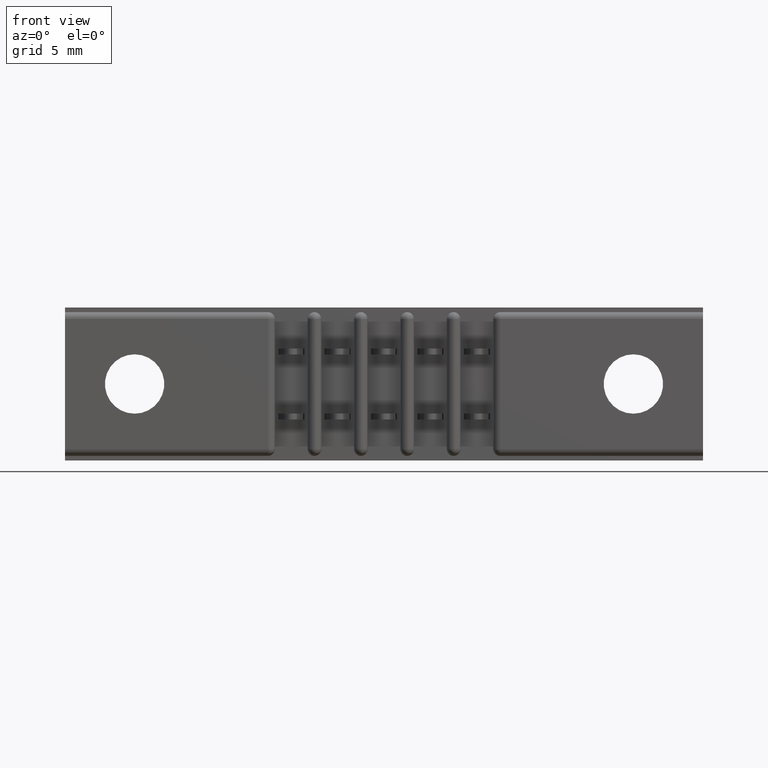
[diagram: clean part render]
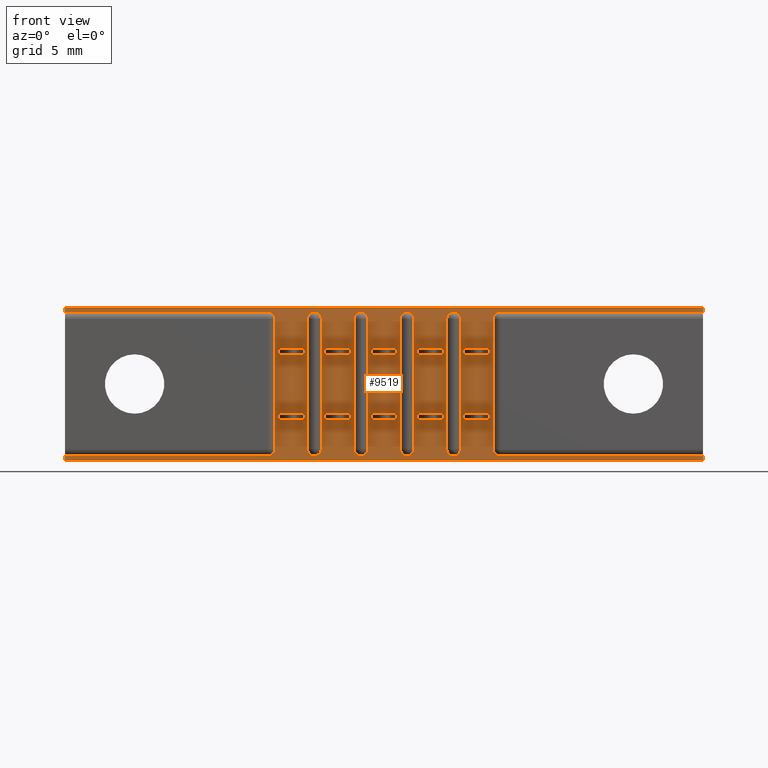
[diagram: same view with one face highlighted and labeled with its STEP entity id]
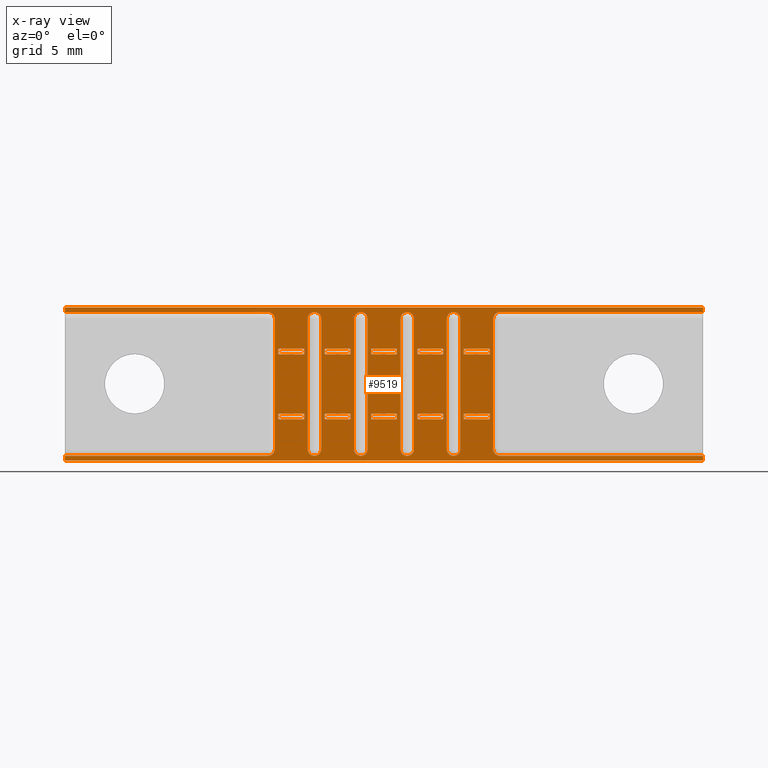
[diagram: x-ray of the same camera — body ghosted, the highlighted face saturated]
A machine part, front view. The second image highlights one B-rep face of the part: STEP entity #9519.
The next image is the same camera in x-ray: the body ghosted, the highlighted face saturated — about 0% of this face is hidden behind the body in this view.
In plain terms, the highlighted planar face has unit normal (0, 1, -0).
Its self-contained STEP definition (entity closure, byte-faithful):
#6 = CARTESIAN_POINT ( 'NONE',  ( 0.5377500000000002800, 0.03099999999999899700, -0.3049999999999999900 ) ) ;
#19 = AXIS2_PLACEMENT_3D ( 'NONE', #4842, #10398, #5757 ) ;
#89 = EDGE_CURVE ( 'NONE', #8080, #4958, #3543, .T. ) ;
#106 = AXIS2_PLACEMENT_3D ( 'NONE', #1381, #1370, #1366 ) ;
#108 = CARTESIAN_POINT ( 'NONE',  ( 0.6594999999999995300, 0.03100000000000002400, -0.2029999999999999300 ) ) ;
#109 = ORIENTED_EDGE ( 'NONE', *, *, #7402, .T. ) ;
#125 = DIRECTION ( 'NONE',  ( 0.0000000000000000000, 1.000000000000000000, -3.414809992080365400E-015 ) ) ;
#128 = CARTESIAN_POINT ( 'NONE',  ( 0.8594999999999994900, 0.03100000000000000700, -0.2414999999999998800 ) ) ;
#154 = AXIS2_PLACEMENT_3D ( 'NONE', #1957, #1948, #1909 ) ;
#170 = DIRECTION ( 'NONE',  ( 0.0000000000000000000, 0.0000000000000000000, -1.000000000000000000 ) ) ;
#179 = ORIENTED_EDGE ( 'NONE', *, *, #6045, .T. ) ;
#189 = VERTEX_POINT ( 'NONE', #382 ) ;
#190 = VERTEX_POINT ( 'NONE', #4159 ) ;
#200 = EDGE_CURVE ( 'NONE', #4737, #8665, #6596, .T. ) ;
#259 = ORIENTED_EDGE ( 'NONE', *, *, #2756, .T. ) ;
#271 = ORIENTED_EDGE ( 'NONE', *, *, #5970, .F. ) ;
#296 = EDGE_LOOP ( 'NONE', ( #6467, #259, #4489, #513, #619, #1686 ) ) ;
#300 = ORIENTED_EDGE ( 'NONE', *, *, #9432, .F. ) ;
#328 = EDGE_CURVE ( 'NONE', #836, #751, #9291, .T. ) ;
#331 = DIRECTION ( 'NONE',  ( 1.000000000000000000, -1.210925529106501700E-016, -2.109734998192877800E-032 ) ) ;
#356 = ORIENTED_EDGE ( 'NONE', *, *, #1747, .T. ) ;
#373 = VERTEX_POINT ( 'NONE', #7046 ) ;
#382 = CARTESIAN_POINT ( 'NONE',  ( 0.6154999999999994900, 0.03100000000000000000, -0.2284999999999998400 ) ) ;
#403 = VERTEX_POINT ( 'NONE', #7757 ) ;
#404 = EDGE_CURVE ( 'NONE', #4330, #751, #3260, .T. ) ;
#422 = EDGE_CURVE ( 'NONE', #7274, #5988, #5348, .T. ) ;
#447 = VERTEX_POINT ( 'NONE', #4170 ) ;
#460 = CARTESIAN_POINT ( 'NONE',  ( 0.8522500000000004000, 0.03100000000000000700, -0.02499166435056491400 ) ) ;
#463 = LINE ( 'NONE', #730, #5156 ) ;
#482 = ORIENTED_EDGE ( 'NONE', *, *, #328, .T. ) ;
#505 = CARTESIAN_POINT ( 'NONE',  ( 0.6154999999999994900, 0.03100000000000002400, -0.2029999999999999300 ) ) ;
#513 = ORIENTED_EDGE ( 'NONE', *, *, #3620, .T. ) ;
#540 = DIRECTION ( 'NONE',  ( -1.000000000000000000, -0.0000000000000000000, -0.0000000000000000000 ) ) ;
#549 = CARTESIAN_POINT ( 'NONE',  ( 0.9154999999999995400, 0.03100000000000002400, -0.2414999999999998800 ) ) ;
#563 = CARTESIAN_POINT ( 'NONE',  ( 1.375000000000000000, 0.03100000000000003800, -6.829619984160658000E-017 ) ) ;
#619 = ORIENTED_EDGE ( 'NONE', *, *, #4628, .T. ) ;
#636 = CARTESIAN_POINT ( 'NONE',  ( 1.375000000000000000, 0.03100000000000000300, -0.009999999999999962000 ) ) ;
#670 = VERTEX_POINT ( 'NONE', #6570 ) ;
#682 = CARTESIAN_POINT ( 'NONE',  ( 0.5594999999999995500, 0.03100000000000000700, -0.1014999999999998500 ) ) ;
#697 = EDGE_CURVE ( 'NONE', #447, #4330, #8580, .T. ) ;
#701 = VECTOR ( 'NONE', #9563, 39.37007874015748100 ) ;
#730 = CARTESIAN_POINT ( 'NONE',  ( 0.7594999999999994000, 0.03100000000000002400, -0.2029999999999999300 ) ) ;
#737 = ORIENTED_EDGE ( 'NONE', *, *, #2792, .T. ) ;
#751 = VERTEX_POINT ( 'NONE', #7551 ) ;
#761 = VERTEX_POINT ( 'NONE', #10234 ) ;
#809 = DIRECTION ( 'NONE',  ( -1.000000000000000000, 1.210925529106501700E-016, 2.109734998192877800E-032 ) ) ;
#814 = DIRECTION ( 'NONE',  ( -1.000000000000000000, -0.0000000000000000000, -0.0000000000000000000 ) ) ;
#820 = LINE ( 'NONE', #3554, #5999 ) ;
#836 = VERTEX_POINT ( 'NONE', #7213 ) ;
#864 = CARTESIAN_POINT ( 'NONE',  ( 0.7154999999999994700, 0.03100000000000002400, -0.2029999999999999300 ) ) ;
#895 = CARTESIAN_POINT ( 'NONE',  ( 0.8594999999999994900, 0.03100000000000000700, -0.2284999999999998400 ) ) ;
#932 = VERTEX_POINT ( 'NONE', #2240 ) ;
#960 = CARTESIAN_POINT ( 'NONE',  ( 0.7594999999999994000, 0.03100000000000002400, -0.2414999999999998800 ) ) ;
#966 = LINE ( 'NONE', #9379, #3192 ) ;
#1006 = ORIENTED_EDGE ( 'NONE', *, *, #10284, .T. ) ;
#1043 = DIRECTION ( 'NONE',  ( 0.0000000000000000000, 3.414809992080326400E-015, 1.000000000000000000 ) ) ;
#1057 = VECTOR ( 'NONE', #6014, 39.37007874015748100 ) ;
#1059 = DIRECTION ( 'NONE',  ( 0.0000000000000000000, 1.000000000000000000, -3.414809992080365400E-015 ) ) ;
#1068 = CIRCLE ( 'NONE', #106, 0.01499999999999999900 ) ;
#1069 = VECTOR ( 'NONE', #10860, 39.37007874015748100 ) ;
#1085 = LINE ( 'NONE', #8064, #2731 ) ;
#1100 = CARTESIAN_POINT ( 'NONE',  ( 0.5372500000000004500, 0.03099999999999899700, -0.3050083356494350300 ) ) ;
#1106 = ORIENTED_EDGE ( 'NONE', *, *, #5590, .T. ) ;
#1166 = VECTOR ( 'NONE', #5529, 39.37007874015748100 ) ;
#1171 = EDGE_CURVE ( 'NONE', #8665, #2169, #3824, .T. ) ;
#1197 = CIRCLE ( 'NONE', #4957, 0.01499999999999999900 ) ;
#1215 = CARTESIAN_POINT ( 'NONE',  ( 0.9154999999999994300, 0.03100000000000002400, -0.2029999999999999300 ) ) ;
#1290 = LINE ( 'NONE', #5014, #8604 ) ;
#1310 = CARTESIAN_POINT ( 'NONE',  ( 0.7522500000000004200, 0.03100000000000000700, 0.0000000000000000000 ) ) ;
#1322 = VERTEX_POINT ( 'NONE', #8336 ) ;
#1352 = FACE_BOUND ( 'NONE', #2620, .T. ) ;
#1366 = DIRECTION ( 'NONE',  ( 0.0000000000000000000, 3.414809992080329100E-015, 1.000000000000000000 ) ) ;
#1370 = DIRECTION ( 'NONE',  ( 0.0000000000000000000, 1.000000000000000000, -3.414809992080365400E-015 ) ) ;
#1375 = CIRCLE ( 'NONE', #6993, 0.01499999999999999900 ) ;
#1381 = CARTESIAN_POINT ( 'NONE',  ( 0.7372500000000004100, 0.03099999999999995100, -0.02499166435056491400 ) ) ;
#1394 = LINE ( 'NONE', #9934, #1057 ) ;
#1410 = EDGE_CURVE ( 'NONE', #2784, #3246, #8213, .T. ) ;
#1495 = DIRECTION ( 'NONE',  ( 0.0000000000000000000, 1.000000000000000000, -3.414809992080365400E-015 ) ) ;
#1550 = AXIS2_PLACEMENT_3D ( 'NONE', #9088, #9074, #9073 ) ;
#1576 = EDGE_CURVE ( 'NONE', #6659, #9992, #1375, .T. ) ;
#1593 = VECTOR ( 'NONE', #3092, 39.37007874015748100 ) ;
#1648 = ORIENTED_EDGE ( 'NONE', *, *, #4552, .F. ) ;
#1661 = ORIENTED_EDGE ( 'NONE', *, *, #89, .F. ) ;
#1665 = FACE_BOUND ( 'NONE', #5671, .T. ) ;
#1669 = EDGE_CURVE ( 'NONE', #9530, #8569, #4778, .T. ) ;
#1686 = ORIENTED_EDGE ( 'NONE', *, *, #4975, .F. ) ;
#1700 = VERTEX_POINT ( 'NONE', #1980 ) ;
#1701 = CARTESIAN_POINT ( 'NONE',  ( 0.7594999999999995100, 0.03100000000000000700, -0.08849999999999985700 ) ) ;
#1725 = VECTOR ( 'NONE', #5168, 39.37007874015748100 ) ;
#1732 = CARTESIAN_POINT ( 'NONE',  ( 0.6522500000000005500, 0.03100000000000000700, -0.02499166435056491400 ) ) ;
#1747 = EDGE_CURVE ( 'NONE', #3246, #190, #3941, .T. ) ;
#1770 = VERTEX_POINT ( 'NONE', #8448 ) ;
#1800 = DIRECTION ( 'NONE',  ( 0.0000000000000000000, 0.0000000000000000000, -1.000000000000000000 ) ) ;
#1804 = VECTOR ( 'NONE', #8554, 39.37007874015748100 ) ;
#1842 = ORIENTED_EDGE ( 'NONE', *, *, #6598, .T. ) ;
#1857 = DIRECTION ( 'NONE',  ( 0.0000000000000000000, 1.000000000000000000, -3.414809992080365400E-015 ) ) ;
#1889 = DIRECTION ( 'NONE',  ( 1.000000000000000000, -1.210925529106501700E-016, -2.109734998192877800E-032 ) ) ;
#1893 = LINE ( 'NONE', #6494, #10206 ) ;
#1896 = CARTESIAN_POINT ( 'NONE',  ( 1.375000000000000000, 0.03100000000000000300, -0.009999999999999962000 ) ) ;
#1909 = DIRECTION ( 'NONE',  ( 0.0000000000000000000, 3.414809992080329100E-015, 1.000000000000000000 ) ) ;
#1916 = DIRECTION ( 'NONE',  ( -0.0000000000000000000, -0.0000000000000000000, -1.000000000000000000 ) ) ;
#1948 = DIRECTION ( 'NONE',  ( 0.0000000000000000000, 1.000000000000000000, -3.414809992080365400E-015 ) ) ;
#1957 = CARTESIAN_POINT ( 'NONE',  ( 0.7377500000000003500, 0.03099999999999995100, -0.02499999999999996300 ) ) ;
#1976 = CARTESIAN_POINT ( 'NONE',  ( 0.4594999999999995200, 0.03100000000000000700, -0.1014999999999998500 ) ) ;
#1980 = CARTESIAN_POINT ( 'NONE',  ( 0.5522500000000004600, 0.03100000000000000700, -0.02499166435056492100 ) ) ;
#1981 = FACE_OUTER_BOUND ( 'NONE', #7919, .T. ) ;
#2010 = ORIENTED_EDGE ( 'NONE', *, *, #6844, .F. ) ;
#2019 = CARTESIAN_POINT ( 'NONE',  ( 0.8154999999999995600, 0.03100000000000000000, -0.08849999999999985700 ) ) ;
#2037 = VECTOR ( 'NONE', #814, 39.37007874015748100 ) ;
#2044 = CIRCLE ( 'NONE', #3125, 0.01500000000000001200 ) ;
#2047 = VERTEX_POINT ( 'NONE', #960 ) ;
#2051 = ORIENTED_EDGE ( 'NONE', *, *, #3031, .F. ) ;
#2054 = DIRECTION ( 'NONE',  ( -1.000000000000000000, 1.210925529106501700E-016, 2.109734998192877800E-032 ) ) ;
#2059 = DIRECTION ( 'NONE',  ( 0.0000000000000000000, 3.414809992080329100E-015, 1.000000000000000000 ) ) ;
#2075 = LINE ( 'NONE', #10458, #10563 ) ;
#2078 = VECTOR ( 'NONE', #2054, 39.37007874015748100 ) ;
#2088 = EDGE_CURVE ( 'NONE', #2784, #6174, #10360, .T. ) ;
#2098 = CARTESIAN_POINT ( 'NONE',  ( 0.4372500000000003600, 0.03099999999999996500, -0.3200000000000000100 ) ) ;
#2109 = CARTESIAN_POINT ( 'NONE',  ( 0.5594999999999995500, 0.03100000000000000700, -0.2284999999999998400 ) ) ;
#2169 = VERTEX_POINT ( 'NONE', #2098 ) ;
#2187 = ORIENTED_EDGE ( 'NONE', *, *, #9433, .T. ) ;
#2209 = VERTEX_POINT ( 'NONE', #5120 ) ;
#2212 = LINE ( 'NONE', #5753, #8774 ) ;
#2238 = CIRCLE ( 'NONE', #6164, 0.01499999999999999900 ) ;
#2240 = CARTESIAN_POINT ( 'NONE',  ( 0.5522500000000004600, 0.03100000000000000700, -0.3050083356494350300 ) ) ;
#2243 = FACE_BOUND ( 'NONE', #296, .T. ) ;
#2278 = VECTOR ( 'NONE', #3212, 39.37007874015748100 ) ;
#2290 = EDGE_CURVE ( 'NONE', #4661, #4141, #2238, .T. ) ;
#2296 = CARTESIAN_POINT ( 'NONE',  ( 0.6154999999999994900, 0.03100000000000000000, -0.1014999999999998500 ) ) ;
#2312 = EDGE_CURVE ( 'NONE', #3797, #8080, #8312, .T. ) ;
#2314 = VECTOR ( 'NONE', #3433, 39.37007874015748100 ) ;
#2328 = VERTEX_POINT ( 'NONE', #9231 ) ;
#2367 = EDGE_CURVE ( 'NONE', #9992, #1700, #9828, .T. ) ;
#2385 = ORIENTED_EDGE ( 'NONE', *, *, #3280, .F. ) ;
#2410 = DIRECTION ( 'NONE',  ( 0.0000000000000000000, 0.0000000000000000000, -1.000000000000000000 ) ) ;
#2422 = CARTESIAN_POINT ( 'NONE',  ( 0.5154999999999995100, 0.03100000000000002400, -0.2029999999999999300 ) ) ;
#2423 = DIRECTION ( 'NONE',  ( 0.0000000000000000000, 3.414809992080326400E-015, 1.000000000000000000 ) ) ;
#2433 = DIRECTION ( 'NONE',  ( 0.0000000000000000000, 1.000000000000000000, -3.414809992080365400E-015 ) ) ;
#2489 = CARTESIAN_POINT ( 'NONE',  ( 1.375000000000000000, 0.03100000000000003800, -6.829619984160658000E-017 ) ) ;
#2494 = DIRECTION ( 'NONE',  ( -1.000000000000000000, 1.210925529106501700E-016, 2.109734998192877800E-032 ) ) ;
#2499 = ORIENTED_EDGE ( 'NONE', *, *, #2312, .F. ) ;
#2502 = CARTESIAN_POINT ( 'NONE',  ( 0.8154999999999994500, 0.03100000000000002400, -0.2029999999999999300 ) ) ;
#2514 = ORIENTED_EDGE ( 'NONE', *, *, #5619, .T. ) ;
#2529 = CARTESIAN_POINT ( 'NONE',  ( 0.6594999999999995300, 0.03100000000000000700, -0.2284999999999998400 ) ) ;
#2534 = EDGE_CURVE ( 'NONE', #5328, #6267, #7963, .T. ) ;
#2543 = CARTESIAN_POINT ( 'NONE',  ( 0.7594999999999995100, 0.03100000000000000700, -0.1014999999999998500 ) ) ;
#2564 = VECTOR ( 'NONE', #9938, 39.37007874015748100 ) ;
#2573 = VECTOR ( 'NONE', #2494, 39.37007874015748100 ) ;
#2599 = CARTESIAN_POINT ( 'NONE',  ( 0.4522500000000004800, 0.03100000000000000700, -0.02499999999999996300 ) ) ;
#2602 = VECTOR ( 'NONE', #8681, 39.37007874015748100 ) ;
#2607 = ORIENTED_EDGE ( 'NONE', *, *, #10777, .F. ) ;
#2616 = CIRCLE ( 'NONE', #2963, 0.01500000000000001200 ) ;
#2619 = VERTEX_POINT ( 'NONE', #8631 ) ;
#2620 = EDGE_LOOP ( 'NONE', ( #4657, #10647, #9785, #4771 ) ) ;
#2623 = ORIENTED_EDGE ( 'NONE', *, *, #9846, .T. ) ;
#2627 = ORIENTED_EDGE ( 'NONE', *, *, #2534, .T. ) ;
#2637 = VECTOR ( 'NONE', #4031, 39.37007874015748100 ) ;
#2648 = LINE ( 'NONE', #6280, #6820 ) ;
#2658 = CARTESIAN_POINT ( 'NONE',  ( 0.8372500000000004900, 0.03099999999999899700, -0.3050083356494350300 ) ) ;
#2661 = ORIENTED_EDGE ( 'NONE', *, *, #5169, .F. ) ;
#2666 = LINE ( 'NONE', #5276, #6840 ) ;
#2731 = VECTOR ( 'NONE', #7993, 39.37007874015748100 ) ;
#2733 = VERTEX_POINT ( 'NONE', #2019 ) ;
#2741 = ORIENTED_EDGE ( 'NONE', *, *, #2853, .F. ) ;
#2756 = EDGE_CURVE ( 'NONE', #4141, #5624, #2935, .T. ) ;
#2764 = CARTESIAN_POINT ( 'NONE',  ( 0.5154999999999995100, 0.03100000000000000000, -0.08849999999999985700 ) ) ;
#2784 = VERTEX_POINT ( 'NONE', #6999 ) ;
#2785 = ORIENTED_EDGE ( 'NONE', *, *, #1410, .T. ) ;
#2792 = EDGE_CURVE ( 'NONE', #6126, #5449, #2648, .T. ) ;
#2805 = DIRECTION ( 'NONE',  ( -0.0000000000000000000, -0.0000000000000000000, -1.000000000000000000 ) ) ;
#2833 = EDGE_LOOP ( 'NONE', ( #4236, #4434, #4747, #5396 ) ) ;
#2848 = ORIENTED_EDGE ( 'NONE', *, *, #7536, .T. ) ;
#2853 = EDGE_CURVE ( 'NONE', #6174, #5449, #8644, .T. ) ;
#2863 = CARTESIAN_POINT ( 'NONE',  ( 0.7154999999999994700, 0.03100000000000000000, -0.08849999999999985700 ) ) ;
#2881 = DIRECTION ( 'NONE',  ( 0.0000000000000000000, 1.000000000000000000, -3.414809992080365400E-015 ) ) ;
#2882 = CARTESIAN_POINT ( 'NONE',  ( 0.9154999999999995400, 0.03100000000000000000, -0.08849999999999985700 ) ) ;
#2901 = EDGE_CURVE ( 'NONE', #1700, #932, #6275, .T. ) ;
#2904 = EDGE_CURVE ( 'NONE', #5283, #10544, #8177, .T. ) ;
#2910 = CARTESIAN_POINT ( 'NONE',  ( 0.7377500000000003500, 0.03099999999999996500, -0.3200000000000000100 ) ) ;
#2929 = CARTESIAN_POINT ( 'NONE',  ( 0.8154999999999995600, 0.03100000000000000000, -0.2284999999999998400 ) ) ;
#2931 = CIRCLE ( 'NONE', #8274, 0.01499999999999999900 ) ;
#2935 = CIRCLE ( 'NONE', #5411, 0.01499999999999999900 ) ;
#2942 = CARTESIAN_POINT ( 'NONE',  ( 0.6522500000000005500, 0.03100000000000000700, 0.0000000000000000000 ) ) ;
#2963 = AXIS2_PLACEMENT_3D ( 'NONE', #10121, #1857, #3606 ) ;
#2966 = CARTESIAN_POINT ( 'NONE',  ( 0.8594999999999993800, 0.03100000000000002400, -0.2414999999999998800 ) ) ;
#3025 = CARTESIAN_POINT ( 'NONE',  ( 0.6594999999999995300, 0.03100000000000000700, -0.1014999999999998500 ) ) ;
#3031 = EDGE_CURVE ( 'NONE', #2047, #3429, #2212, .T. ) ;
#3092 = DIRECTION ( 'NONE',  ( 0.0000000000000000000, 0.0000000000000000000, 1.000000000000000000 ) ) ;
#3109 = VECTOR ( 'NONE', #540, 39.37007874015748100 ) ;
#3125 = AXIS2_PLACEMENT_3D ( 'NONE', #6, #1495, #3817 ) ;
#3136 = CARTESIAN_POINT ( 'NONE',  ( 0.4372500000000003600, 0.03100000000000000300, -0.009999999999999962000 ) ) ;
#3137 = VERTEX_POINT ( 'NONE', #6197 ) ;
#3143 = DIRECTION ( 'NONE',  ( -0.0000000000000000000, -0.0000000000000000000, -1.000000000000000000 ) ) ;
#3163 = CARTESIAN_POINT ( 'NONE',  ( 0.0000000000000000000, 0.03099999999999996200, -0.3299999999999999000 ) ) ;
#3171 = ORIENTED_EDGE ( 'NONE', *, *, #10471, .F. ) ;
#3183 = EDGE_LOOP ( 'NONE', ( #7284, #8346, #109, #10694 ) ) ;
#3192 = VECTOR ( 'NONE', #8645, 39.37007874015748100 ) ;
#3200 = EDGE_CURVE ( 'NONE', #5624, #6573, #5279, .T. ) ;
#3203 = ORIENTED_EDGE ( 'NONE', *, *, #7452, .T. ) ;
#3205 = CARTESIAN_POINT ( 'NONE',  ( 0.6377500000000003700, 0.03099999999999996500, -0.3200000000000000100 ) ) ;
#3206 = LINE ( 'NONE', #10393, #7077 ) ;
#3212 = DIRECTION ( 'NONE',  ( -0.0000000000000000000, -0.0000000000000000000, -1.000000000000000000 ) ) ;
#3246 = VERTEX_POINT ( 'NONE', #8860 ) ;
#3251 = EDGE_CURVE ( 'NONE', #932, #6718, #10774, .T. ) ;
#3255 = EDGE_CURVE ( 'NONE', #2733, #6543, #6811, .T. ) ;
#3260 = LINE ( 'NONE', #4546, #701 ) ;
#3280 = EDGE_CURVE ( 'NONE', #10233, #5988, #8638, .T. ) ;
#3304 = ORIENTED_EDGE ( 'NONE', *, *, #5653, .F. ) ;
#3317 = CARTESIAN_POINT ( 'NONE',  ( 0.5594999999999995500, 0.03100000000000000700, -0.08849999999999985700 ) ) ;
#3322 = CARTESIAN_POINT ( 'NONE',  ( 0.8154999999999995600, 0.03100000000000000000, -0.1014999999999998500 ) ) ;
#3368 = CARTESIAN_POINT ( 'NONE',  ( 0.5594999999999994400, 0.03100000000000000700, -0.1269999999999997000 ) ) ;
#3373 = PLANE ( 'NONE',  #10296 ) ;
#3429 = VERTEX_POINT ( 'NONE', #9375 ) ;
#3433 = DIRECTION ( 'NONE',  ( 0.0000000000000000000, 0.0000000000000000000, -1.000000000000000000 ) ) ;
#3443 = DIRECTION ( 'NONE',  ( 0.0000000000000000000, 1.000000000000000000, -3.414809992080365400E-015 ) ) ;
#3452 = ORIENTED_EDGE ( 'NONE', *, *, #7852, .T. ) ;
#3490 = DIRECTION ( 'NONE',  ( 1.000000000000000000, -1.210925529106501700E-016, -2.109734998192877800E-032 ) ) ;
#3518 = CARTESIAN_POINT ( 'NONE',  ( 0.5377500000000002800, 0.03099999999999995100, -0.02499999999999996300 ) ) ;
#3528 = CIRCLE ( 'NONE', #5642, 0.01499999999999999900 ) ;
#3543 = LINE ( 'NONE', #1896, #1069 ) ;
#3554 = CARTESIAN_POINT ( 'NONE',  ( 0.7227500000000003400, 0.03100000000000000000, 0.0000000000000000000 ) ) ;
#3595 = VERTEX_POINT ( 'NONE', #3710 ) ;
#3606 = DIRECTION ( 'NONE',  ( 0.0000000000000000000, 3.414809992080326400E-015, 1.000000000000000000 ) ) ;
#3620 = EDGE_CURVE ( 'NONE', #6573, #4839, #6522, .T. ) ;
#3621 = DIRECTION ( 'NONE',  ( -0.0000000000000000000, -4.268512490100456800E-016, -1.000000000000000000 ) ) ;
#3623 = CARTESIAN_POINT ( 'NONE',  ( 0.6227500000000003600, 0.03100000000000000000, 0.0000000000000000000 ) ) ;
#3649 = LINE ( 'NONE', #9780, #9954 ) ;
#3710 = CARTESIAN_POINT ( 'NONE',  ( 0.7154999999999994700, 0.03100000000000002400, -0.2414999999999998800 ) ) ;
#3794 = CARTESIAN_POINT ( 'NONE',  ( 1.375000000000000000, 0.03099999999999996200, -0.3299999999999999000 ) ) ;
#3797 = VERTEX_POINT ( 'NONE', #6387 ) ;
#3798 = FACE_BOUND ( 'NONE', #3994, .T. ) ;
#3817 = DIRECTION ( 'NONE',  ( 0.0000000000000000000, 3.414809992080326400E-015, 1.000000000000000000 ) ) ;
#3824 = CIRCLE ( 'NONE', #7653, 0.01500000000000001200 ) ;
#3837 = VECTOR ( 'NONE', #7428, 39.37007874015748100 ) ;
#3846 = EDGE_LOOP ( 'NONE', ( #271, #6568, #1842, #2010 ) ) ;
#3868 = ORIENTED_EDGE ( 'NONE', *, *, #8800, .T. ) ;
#3913 = VERTEX_POINT ( 'NONE', #2296 ) ;
#3941 = CIRCLE ( 'NONE', #6681, 0.01500000000000001200 ) ;
#3994 = EDGE_LOOP ( 'NONE', ( #2661, #9314, #10581, #300 ) ) ;
#4031 = DIRECTION ( 'NONE',  ( 1.000000000000000000, -1.210925529106501700E-016, -2.109734998192877800E-032 ) ) ;
#4034 = ORIENTED_EDGE ( 'NONE', *, *, #10328, .F. ) ;
#4049 = VECTOR ( 'NONE', #10225, 39.37007874015748100 ) ;
#4050 = DIRECTION ( 'NONE',  ( 1.000000000000000000, -1.210925529106501700E-016, -2.109734998192877800E-032 ) ) ;
#4072 = FACE_BOUND ( 'NONE', #6842, .T. ) ;
#4091 = AXIS2_PLACEMENT_3D ( 'NONE', #2658, #2433, #2423 ) ;
#4111 = CARTESIAN_POINT ( 'NONE',  ( 0.7522500000000004200, 0.03100000000000000700, -0.3050083356494350300 ) ) ;
#4138 = VECTOR ( 'NONE', #331, 39.37007874015748100 ) ;
#4141 = VERTEX_POINT ( 'NONE', #6819 ) ;
#4159 = CARTESIAN_POINT ( 'NONE',  ( 0.9227500000000004000, 0.03100000000000000000, -0.3049999999999999900 ) ) ;
#4170 = CARTESIAN_POINT ( 'NONE',  ( 0.7154999999999994700, 0.03100000000000000000, -0.1014999999999998500 ) ) ;
#4175 = EDGE_LOOP ( 'NONE', ( #4732, #3171, #6064, #2051 ) ) ;
#4187 = CARTESIAN_POINT ( 'NONE',  ( 0.9377500000000004200, 0.03099999999999899700, -0.3049999999999999900 ) ) ;
#4214 = ORIENTED_EDGE ( 'NONE', *, *, #5964, .F. ) ;
#4236 = ORIENTED_EDGE ( 'NONE', *, *, #5677, .F. ) ;
#4279 = DIRECTION ( 'NONE',  ( 0.0000000000000000000, 1.000000000000000000, -3.414809992080365400E-015 ) ) ;
#4288 = DIRECTION ( 'NONE',  ( 0.0000000000000000000, 1.000000000000000000, -3.414809992080365400E-015 ) ) ;
#4312 = ORIENTED_EDGE ( 'NONE', *, *, #5059, .F. ) ;
#4316 = DIRECTION ( 'NONE',  ( 0.0000000000000000000, 3.414809992080326400E-015, 1.000000000000000000 ) ) ;
#4330 = VERTEX_POINT ( 'NONE', #2863 ) ;
#4349 = FACE_BOUND ( 'NONE', #8865, .T. ) ;
#4391 = CARTESIAN_POINT ( 'NONE',  ( 0.8227500000000004300, 0.03100000000000000000, -0.02499999999999996300 ) ) ;
#4406 = ORIENTED_EDGE ( 'NONE', *, *, #2088, .F. ) ;
#4416 = LINE ( 'NONE', #5393, #4696 ) ;
#4434 = ORIENTED_EDGE ( 'NONE', *, *, #7394, .F. ) ;
#4465 = EDGE_CURVE ( 'NONE', #6718, #5079, #2044, .T. ) ;
#4489 = ORIENTED_EDGE ( 'NONE', *, *, #3200, .T. ) ;
#4546 = CARTESIAN_POINT ( 'NONE',  ( 0.6594999999999995300, 0.03100000000000000700, -0.08849999999999985700 ) ) ;
#4552 = EDGE_CURVE ( 'NONE', #6659, #5079, #1290, .T. ) ;
#4578 = CARTESIAN_POINT ( 'NONE',  ( 0.0000000000000000000, 0.03100000000000003800, -6.829619984160658000E-017 ) ) ;
#4584 = CARTESIAN_POINT ( 'NONE',  ( 0.5154999999999995100, 0.03100000000000000000, -0.1014999999999998500 ) ) ;
#4617 = AXIS2_PLACEMENT_3D ( 'NONE', #10276, #5583, #10948 ) ;
#4628 = EDGE_CURVE ( 'NONE', #4839, #6359, #2616, .T. ) ;
#4649 = AXIS2_PLACEMENT_3D ( 'NONE', #1100, #1059, #1043 ) ;
#4651 = ORIENTED_EDGE ( 'NONE', *, *, #2904, .F. ) ;
#4657 = ORIENTED_EDGE ( 'NONE', *, *, #9617, .F. ) ;
#4661 = VERTEX_POINT ( 'NONE', #4391 ) ;
#4675 = ORIENTED_EDGE ( 'NONE', *, *, #10076, .F. ) ;
#4684 = VECTOR ( 'NONE', #2410, 39.37007874015748100 ) ;
#4696 = VECTOR ( 'NONE', #5273, 39.37007874015748100 ) ;
#4703 = CARTESIAN_POINT ( 'NONE',  ( 0.6227500000000003600, 0.03100000000000000000, -0.02499999999999996300 ) ) ;
#4704 = LINE ( 'NONE', #1215, #2314 ) ;
#4732 = ORIENTED_EDGE ( 'NONE', *, *, #10085, .F. ) ;
#4737 = VERTEX_POINT ( 'NONE', #2599 ) ;
#4747 = ORIENTED_EDGE ( 'NONE', *, *, #9125, .T. ) ;
#4771 = ORIENTED_EDGE ( 'NONE', *, *, #1669, .F. ) ;
#4778 = LINE ( 'NONE', #3317, #8925 ) ;
#4800 = CARTESIAN_POINT ( 'NONE',  ( 0.9377500000000004200, 0.03099999999999995100, -0.02499999999999996300 ) ) ;
#4809 = VECTOR ( 'NONE', #7871, 39.37007874015748100 ) ;
#4839 = VERTEX_POINT ( 'NONE', #9776 ) ;
#4840 = VERTEX_POINT ( 'NONE', #895 ) ;
#4842 = CARTESIAN_POINT ( 'NONE',  ( 0.6377500000000003700, 0.03099999999999995100, -0.02499999999999996300 ) ) ;
#4865 = VECTOR ( 'NONE', #7734, 39.37007874015748100 ) ;
#4950 = LINE ( 'NONE', #9300, #7002 ) ;
#4957 = AXIS2_PLACEMENT_3D ( 'NONE', #4978, #10507, #5887 ) ;
#4958 = VERTEX_POINT ( 'NONE', #10553 ) ;
#4975 = EDGE_CURVE ( 'NONE', #4661, #6359, #10424, .T. ) ;
#4978 = CARTESIAN_POINT ( 'NONE',  ( 0.6372500000000004300, 0.03099999999999995100, -0.02499166435056491400 ) ) ;
#4993 = ORIENTED_EDGE ( 'NONE', *, *, #2901, .T. ) ;
#5010 = VECTOR ( 'NONE', #809, 39.37007874015748100 ) ;
#5014 = CARTESIAN_POINT ( 'NONE',  ( 0.5227500000000003800, 0.03100000000000000000, 0.0000000000000000000 ) ) ;
#5028 = DIRECTION ( 'NONE',  ( 0.0000000000000000000, 1.000000000000000000, -3.414809992080365400E-015 ) ) ;
#5031 = CARTESIAN_POINT ( 'NONE',  ( 0.7594999999999995100, 0.03100000000000000700, -0.2284999999999998400 ) ) ;
#5059 = EDGE_CURVE ( 'NONE', #4840, #7314, #8034, .T. ) ;
#5079 = VERTEX_POINT ( 'NONE', #9284 ) ;
#5083 = LINE ( 'NONE', #7891, #4809 ) ;
#5119 = CARTESIAN_POINT ( 'NONE',  ( 0.8522500000000004000, 0.03100000000000000700, 0.0000000000000000000 ) ) ;
#5120 = CARTESIAN_POINT ( 'NONE',  ( 0.4594999999999995200, 0.03100000000000002400, -0.2414999999999998800 ) ) ;
#5124 = EDGE_CURVE ( 'NONE', #8254, #4840, #7299, .T. ) ;
#5141 = CARTESIAN_POINT ( 'NONE',  ( 0.8594999999999994900, 0.03100000000000000700, -0.08849999999999985700 ) ) ;
#5156 = VECTOR ( 'NONE', #1800, 39.37007874015748100 ) ;
#5168 = DIRECTION ( 'NONE',  ( -1.000000000000000000, 1.210925529106501700E-016, 2.109734998192877800E-032 ) ) ;
#5169 = EDGE_CURVE ( 'NONE', #5513, #1770, #8864, .T. ) ;
#5273 = DIRECTION ( 'NONE',  ( 0.0000000000000000000, 0.0000000000000000000, 1.000000000000000000 ) ) ;
#5276 = CARTESIAN_POINT ( 'NONE',  ( 0.6154999999999994900, 0.03100000000000000000, -0.1269999999999997000 ) ) ;
#5279 = LINE ( 'NONE', #5119, #9352 ) ;
#5281 = CARTESIAN_POINT ( 'NONE',  ( 0.4372500000000004200, 0.03099999999999899700, -0.3049999999999999900 ) ) ;
#5283 = VERTEX_POINT ( 'NONE', #5778 ) ;
#5308 = ORIENTED_EDGE ( 'NONE', *, *, #3255, .F. ) ;
#5328 = VERTEX_POINT ( 'NONE', #4578 ) ;
#5348 = CIRCLE ( 'NONE', #8729, 0.01500000000000001200 ) ;
#5393 = CARTESIAN_POINT ( 'NONE',  ( 0.8154999999999994500, 0.03100000000000000000, -0.1269999999999997000 ) ) ;
#5396 = ORIENTED_EDGE ( 'NONE', *, *, #10989, .F. ) ;
#5399 = AXIS2_PLACEMENT_3D ( 'NONE', #9246, #4288, #9980 ) ;
#5411 = AXIS2_PLACEMENT_3D ( 'NONE', #6561, #9027, #10273 ) ;
#5433 = EDGE_CURVE ( 'NONE', #2328, #8569, #6358, .T. ) ;
#5444 = EDGE_CURVE ( 'NONE', #836, #447, #8258, .T. ) ;
#5445 = VECTOR ( 'NONE', #9024, 39.37007874015748100 ) ;
#5449 = VERTEX_POINT ( 'NONE', #3163 ) ;
#5459 = ORIENTED_EDGE ( 'NONE', *, *, #422, .T. ) ;
#5472 = CARTESIAN_POINT ( 'NONE',  ( 0.7377500000000003500, 0.03100000000000000300, -0.009999999999999962000 ) ) ;
#5477 = EDGE_CURVE ( 'NONE', #10792, #10331, #6077, .T. ) ;
#5513 = VERTEX_POINT ( 'NONE', #2109 ) ;
#5518 = CARTESIAN_POINT ( 'NONE',  ( 0.5372500000000004500, 0.03099999999999995100, -0.02499166435056492100 ) ) ;
#5529 = DIRECTION ( 'NONE',  ( 1.000000000000000000, -1.210925529106501700E-016, -2.109734998192877800E-032 ) ) ;
#5554 = ORIENTED_EDGE ( 'NONE', *, *, #8521, .T. ) ;
#5583 = DIRECTION ( 'NONE',  ( 0.0000000000000000000, 1.000000000000000000, -3.414809992080365400E-015 ) ) ;
#5589 = DIRECTION ( 'NONE',  ( -0.0000000000000000000, -0.0000000000000000000, -1.000000000000000000 ) ) ;
#5590 = EDGE_CURVE ( 'NONE', #8254, #7660, #4704, .T. ) ;
#5619 = EDGE_CURVE ( 'NONE', #3797, #5328, #6767, .T. ) ;
#5624 = VERTEX_POINT ( 'NONE', #460 ) ;
#5642 = AXIS2_PLACEMENT_3D ( 'NONE', #5784, #125, #6656 ) ;
#5653 = EDGE_CURVE ( 'NONE', #7314, #7660, #8595, .T. ) ;
#5659 = VECTOR ( 'NONE', #8321, 39.37007874015748100 ) ;
#5671 = EDGE_LOOP ( 'NONE', ( #2623, #2187, #6309, #5797, #5459, #2385 ) ) ;
#5677 = EDGE_CURVE ( 'NONE', #2619, #10523, #10526, .T. ) ;
#5698 = CARTESIAN_POINT ( 'NONE',  ( 0.4522500000000004800, 0.03100000000000000700, 0.0000000000000000000 ) ) ;
#5709 = DIRECTION ( 'NONE',  ( 0.0000000000000000000, 3.414809992080329100E-015, 1.000000000000000000 ) ) ;
#5731 = LINE ( 'NONE', #682, #9711 ) ;
#5748 = DIRECTION ( 'NONE',  ( 0.0000000000000000000, 0.0000000000000000000, 1.000000000000000000 ) ) ;
#5753 = CARTESIAN_POINT ( 'NONE',  ( 0.7594999999999995100, 0.03100000000000000700, -0.2414999999999998800 ) ) ;
#5757 = DIRECTION ( 'NONE',  ( 0.0000000000000000000, 3.414809992080329100E-015, 1.000000000000000000 ) ) ;
#5778 = CARTESIAN_POINT ( 'NONE',  ( 0.7594999999999995100, 0.03100000000000000700, -0.1014999999999998500 ) ) ;
#5784 = CARTESIAN_POINT ( 'NONE',  ( 0.4372500000000004200, 0.03099999999999995100, -0.02499999999999996300 ) ) ;
#5797 = ORIENTED_EDGE ( 'NONE', *, *, #6068, .T. ) ;
#5816 = VECTOR ( 'NONE', #2805, 39.37007874015748100 ) ;
#5821 = CARTESIAN_POINT ( 'NONE',  ( 0.5594999999999994400, 0.03100000000000000700, -0.08849999999999985700 ) ) ;
#5824 = CARTESIAN_POINT ( 'NONE',  ( 0.5377500000000002800, 0.03099999999999996500, -0.3200000000000000100 ) ) ;
#5877 = CIRCLE ( 'NONE', #19, 0.01499999999999999900 ) ;
#5887 = DIRECTION ( 'NONE',  ( 0.0000000000000000000, 3.414809992080329100E-015, 1.000000000000000000 ) ) ;
#5935 = DIRECTION ( 'NONE',  ( -1.000000000000000000, 1.210925529106501700E-016, 2.109734998192877800E-032 ) ) ;
#5956 = VERTEX_POINT ( 'NONE', #9904 ) ;
#5964 = EDGE_CURVE ( 'NONE', #7814, #6267, #6348, .T. ) ;
#5966 = ORIENTED_EDGE ( 'NONE', *, *, #2367, .T. ) ;
#5970 = EDGE_CURVE ( 'NONE', #373, #7337, #10205, .T. ) ;
#5988 = VERTEX_POINT ( 'NONE', #9561 ) ;
#5992 = VECTOR ( 'NONE', #3143, 39.37007874015748100 ) ;
#5999 = VECTOR ( 'NONE', #7076, 39.37007874015748100 ) ;
#6012 = DIRECTION ( 'NONE',  ( 0.0000000000000000000, 1.000000000000000000, -3.414809992080365400E-015 ) ) ;
#6014 = DIRECTION ( 'NONE',  ( 0.0000000000000000000, 0.0000000000000000000, -1.000000000000000000 ) ) ;
#6045 = EDGE_CURVE ( 'NONE', #2169, #6126, #4950, .T. ) ;
#6061 = AXIS2_PLACEMENT_3D ( 'NONE', #5518, #8518, #8440 ) ;
#6064 = ORIENTED_EDGE ( 'NONE', *, *, #10596, .T. ) ;
#6068 = EDGE_CURVE ( 'NONE', #10331, #7274, #10735, .T. ) ;
#6077 = LINE ( 'NONE', #2942, #5816 ) ;
#6100 = ORIENTED_EDGE ( 'NONE', *, *, #3251, .T. ) ;
#6126 = VERTEX_POINT ( 'NONE', #8945 ) ;
#6139 = CARTESIAN_POINT ( 'NONE',  ( 0.6377500000000003700, 0.03099999999999899700, -0.3049999999999999900 ) ) ;
#6145 = CARTESIAN_POINT ( 'NONE',  ( 0.5227500000000003800, 0.03100000000000000000, -0.02499999999999996300 ) ) ;
#6147 = VECTOR ( 'NONE', #8762, 39.37007874015748100 ) ;
#6157 = FACE_BOUND ( 'NONE', #7787, .T. ) ;
#6161 = CARTESIAN_POINT ( 'NONE',  ( 0.7154999999999994700, 0.03100000000000000000, -0.2284999999999998400 ) ) ;
#6164 = AXIS2_PLACEMENT_3D ( 'NONE', #8579, #8751, #8844 ) ;
#6166 = VECTOR ( 'NONE', #10186, 39.37007874015748100 ) ;
#6174 = VERTEX_POINT ( 'NONE', #8804 ) ;
#6179 = ORIENTED_EDGE ( 'NONE', *, *, #697, .F. ) ;
#6197 = CARTESIAN_POINT ( 'NONE',  ( 0.8594999999999994900, 0.03100000000000000700, -0.1014999999999998500 ) ) ;
#6218 = ORIENTED_EDGE ( 'NONE', *, *, #10166, .T. ) ;
#6254 = EDGE_CURVE ( 'NONE', #5283, #6543, #7657, .T. ) ;
#6258 = ORIENTED_EDGE ( 'NONE', *, *, #404, .F. ) ;
#6267 = VERTEX_POINT ( 'NONE', #8137 ) ;
#6273 = EDGE_LOOP ( 'NONE', ( #3203, #2848, #3452, #9267, #3868, #4675 ) ) ;
#6275 = LINE ( 'NONE', #8763, #5992 ) ;
#6280 = CARTESIAN_POINT ( 'NONE',  ( 0.0000000000000000000, 0.03099999999999996200, -0.3299999999999999000 ) ) ;
#6303 = EDGE_CURVE ( 'NONE', #189, #5513, #1085, .T. ) ;
#6309 = ORIENTED_EDGE ( 'NONE', *, *, #5477, .T. ) ;
#6324 = CARTESIAN_POINT ( 'NONE',  ( 0.9154999999999995400, 0.03100000000000000000, -0.2284999999999998400 ) ) ;
#6325 = EDGE_CURVE ( 'NONE', #3137, #373, #5083, .T. ) ;
#6332 = LINE ( 'NONE', #505, #10187 ) ;
#6343 = EDGE_LOOP ( 'NONE', ( #4034, #7617, #6218, #2607 ) ) ;
#6348 = LINE ( 'NONE', #9766, #8249 ) ;
#6358 = LINE ( 'NONE', #3368, #1593 ) ;
#6359 = VERTEX_POINT ( 'NONE', #7855 ) ;
#6387 = CARTESIAN_POINT ( 'NONE',  ( 1.375000000000000000, 0.03100000000000003800, -6.829619984160658000E-017 ) ) ;
#6396 = DIRECTION ( 'NONE',  ( -0.0000000000000000000, -0.0000000000000000000, -1.000000000000000000 ) ) ;
#6398 = VERTEX_POINT ( 'NONE', #7629 ) ;
#6401 = LINE ( 'NONE', #7222, #4049 ) ;
#6423 = FACE_BOUND ( 'NONE', #4175, .T. ) ;
#6444 = VERTEX_POINT ( 'NONE', #7258 ) ;
#6448 = CARTESIAN_POINT ( 'NONE',  ( 1.375000000000000000, 0.03100000000000003800, -6.829619984160658000E-017 ) ) ;
#6467 = ORIENTED_EDGE ( 'NONE', *, *, #2290, .T. ) ;
#6494 = CARTESIAN_POINT ( 'NONE',  ( 0.8594999999999993800, 0.03100000000000000700, -0.1269999999999997000 ) ) ;
#6500 = VERTEX_POINT ( 'NONE', #6978 ) ;
#6509 = DIRECTION ( 'NONE',  ( 0.0000000000000000000, 0.0000000000000000000, 1.000000000000000000 ) ) ;
#6522 = CIRCLE ( 'NONE', #4091, 0.01500000000000001200 ) ;
#6527 = CARTESIAN_POINT ( 'NONE',  ( 0.8522500000000004000, 0.03100000000000000700, -0.3050083356494350300 ) ) ;
#6542 = CARTESIAN_POINT ( 'NONE',  ( 0.9227500000000004000, 0.03100000000000000000, 0.0000000000000000000 ) ) ;
#6543 = VERTEX_POINT ( 'NONE', #6854 ) ;
#6561 = CARTESIAN_POINT ( 'NONE',  ( 0.8372500000000004900, 0.03099999999999995100, -0.02499166435056491400 ) ) ;
#6568 = ORIENTED_EDGE ( 'NONE', *, *, #6325, .F. ) ;
#6570 = CARTESIAN_POINT ( 'NONE',  ( 0.4594999999999995200, 0.03100000000000000700, -0.08849999999999985700 ) ) ;
#6573 = VERTEX_POINT ( 'NONE', #6527 ) ;
#6577 = CARTESIAN_POINT ( 'NONE',  ( 0.6522500000000005500, 0.03100000000000000700, -0.3050083356494350300 ) ) ;
#6596 = LINE ( 'NONE', #5698, #6877 ) ;
#6598 = EDGE_CURVE ( 'NONE', #3137, #10640, #1893, .T. ) ;
#6613 = ORIENTED_EDGE ( 'NONE', *, *, #6254, .T. ) ;
#6656 = DIRECTION ( 'NONE',  ( 0.0000000000000000000, 3.414809992080329100E-015, 1.000000000000000000 ) ) ;
#6659 = VERTEX_POINT ( 'NONE', #6145 ) ;
#6681 = AXIS2_PLACEMENT_3D ( 'NONE', #4187, #5028, #10924 ) ;
#6687 = VERTEX_POINT ( 'NONE', #6161 ) ;
#6704 = FACE_BOUND ( 'NONE', #6273, .T. ) ;
#6712 = DIRECTION ( 'NONE',  ( -1.000000000000000000, 1.210925529106501700E-016, 2.109734998192877800E-032 ) ) ;
#6714 = LINE ( 'NONE', #864, #6166 ) ;
#6718 = VERTEX_POINT ( 'NONE', #5824 ) ;
#6726 = DIRECTION ( 'NONE',  ( -0.0000000000000000000, -4.268512490100456800E-016, -1.000000000000000000 ) ) ;
#6746 = LINE ( 'NONE', #1976, #8355 ) ;
#6767 = LINE ( 'NONE', #563, #2037 ) ;
#6795 = VERTEX_POINT ( 'NONE', #5472 ) ;
#6811 = LINE ( 'NONE', #1701, #2078 ) ;
#6819 = CARTESIAN_POINT ( 'NONE',  ( 0.8377500000000003300, 0.03100000000000000300, -0.009999999999999962000 ) ) ;
#6820 = VECTOR ( 'NONE', #6726, 39.37007874015748100 ) ;
#6826 = EDGE_CURVE ( 'NONE', #10544, #2733, #4416, .T. ) ;
#6840 = VECTOR ( 'NONE', #9329, 39.37007874015748100 ) ;
#6842 = EDGE_LOOP ( 'NONE', ( #9683, #4651, #6613, #5308 ) ) ;
#6844 = EDGE_CURVE ( 'NONE', #7337, #10640, #8589, .T. ) ;
#6850 = CARTESIAN_POINT ( 'NONE',  ( 0.6594999999999995300, 0.03100000000000002400, -0.2414999999999998800 ) ) ;
#6854 = CARTESIAN_POINT ( 'NONE',  ( 0.7594999999999994000, 0.03100000000000000700, -0.08849999999999985700 ) ) ;
#6877 = VECTOR ( 'NONE', #7497, 39.37007874015748100 ) ;
#6883 = CARTESIAN_POINT ( 'NONE',  ( 0.7154999999999994700, 0.03100000000000000000, -0.1269999999999997000 ) ) ;
#6929 = LINE ( 'NONE', #2502, #4865 ) ;
#6969 = ORIENTED_EDGE ( 'NONE', *, *, #8459, .F. ) ;
#6978 = CARTESIAN_POINT ( 'NONE',  ( 0.5154999999999995100, 0.03100000000000002400, -0.2414999999999998800 ) ) ;
#6993 = AXIS2_PLACEMENT_3D ( 'NONE', #3518, #2881, #2059 ) ;
#6999 = CARTESIAN_POINT ( 'NONE',  ( 1.375000000000000000, 0.03099999999999996500, -0.3200000000000000100 ) ) ;
#7002 = VECTOR ( 'NONE', #9241, 39.37007874015748100 ) ;
#7046 = CARTESIAN_POINT ( 'NONE',  ( 0.9154999999999995400, 0.03100000000000000000, -0.1014999999999998500 ) ) ;
#7049 = CARTESIAN_POINT ( 'NONE',  ( 1.375000000000000000, 0.03099999999999996200, -0.3299999999999999000 ) ) ;
#7076 = DIRECTION ( 'NONE',  ( -0.0000000000000000000, -0.0000000000000000000, -1.000000000000000000 ) ) ;
#7077 = VECTOR ( 'NONE', #5748, 39.37007874015748100 ) ;
#7111 = VERTEX_POINT ( 'NONE', #4111 ) ;
#7163 = CARTESIAN_POINT ( 'NONE',  ( 0.4594999999999995200, 0.03100000000000000700, -0.2284999999999998400 ) ) ;
#7193 = ORIENTED_EDGE ( 'NONE', *, *, #5444, .F. ) ;
#7213 = CARTESIAN_POINT ( 'NONE',  ( 0.6594999999999995300, 0.03100000000000000700, -0.1014999999999998500 ) ) ;
#7222 = CARTESIAN_POINT ( 'NONE',  ( 0.4594999999999995200, 0.03100000000000000700, -0.1269999999999997000 ) ) ;
#7258 = CARTESIAN_POINT ( 'NONE',  ( 0.5154999999999995100, 0.03100000000000000000, -0.2284999999999998400 ) ) ;
#7274 = VERTEX_POINT ( 'NONE', #3205 ) ;
#7281 = CARTESIAN_POINT ( 'NONE',  ( 0.6594999999999995300, 0.03100000000000000700, -0.1269999999999997000 ) ) ;
#7284 = ORIENTED_EDGE ( 'NONE', *, *, #7951, .F. ) ;
#7299 = LINE ( 'NONE', #8907, #2602 ) ;
#7314 = VERTEX_POINT ( 'NONE', #2966 ) ;
#7317 = VERTEX_POINT ( 'NONE', #2910 ) ;
#7326 = VERTEX_POINT ( 'NONE', #2929 ) ;
#7337 = VERTEX_POINT ( 'NONE', #2882 ) ;
#7364 = DIRECTION ( 'NONE',  ( 0.0000000000000000000, 0.0000000000000000000, -1.000000000000000000 ) ) ;
#7394 = EDGE_CURVE ( 'NONE', #6687, #2619, #9296, .T. ) ;
#7402 = EDGE_CURVE ( 'NONE', #6444, #6500, #10934, .T. ) ;
#7428 = DIRECTION ( 'NONE',  ( 0.0000000000000000000, 0.0000000000000000000, 1.000000000000000000 ) ) ;
#7452 = EDGE_CURVE ( 'NONE', #9759, #6795, #10511, .T. ) ;
#7467 = EDGE_CURVE ( 'NONE', #403, #10942, #6746, .T. ) ;
#7497 = DIRECTION ( 'NONE',  ( -0.0000000000000000000, -0.0000000000000000000, -1.000000000000000000 ) ) ;
#7536 = EDGE_CURVE ( 'NONE', #6795, #1322, #1068, .T. ) ;
#7551 = CARTESIAN_POINT ( 'NONE',  ( 0.6594999999999995300, 0.03100000000000000700, -0.08849999999999985700 ) ) ;
#7589 = LINE ( 'NONE', #7163, #5010 ) ;
#7617 = ORIENTED_EDGE ( 'NONE', *, *, #7467, .F. ) ;
#7629 = CARTESIAN_POINT ( 'NONE',  ( 0.6154999999999994900, 0.03100000000000002400, -0.2414999999999998800 ) ) ;
#7642 = CARTESIAN_POINT ( 'NONE',  ( 0.7227500000000003400, 0.03100000000000000000, -0.3049999999999999900 ) ) ;
#7653 = AXIS2_PLACEMENT_3D ( 'NONE', #5281, #3443, #4316 ) ;
#7657 = LINE ( 'NONE', #8339, #5659 ) ;
#7660 = VERTEX_POINT ( 'NONE', #549 ) ;
#7676 = ORIENTED_EDGE ( 'NONE', *, *, #1576, .T. ) ;
#7714 = EDGE_CURVE ( 'NONE', #189, #6398, #6332, .T. ) ;
#7734 = DIRECTION ( 'NONE',  ( 0.0000000000000000000, 0.0000000000000000000, -1.000000000000000000 ) ) ;
#7757 = CARTESIAN_POINT ( 'NONE',  ( 0.4594999999999995200, 0.03100000000000000700, -0.1014999999999998500 ) ) ;
#7773 = EDGE_LOOP ( 'NONE', ( #6179, #7193, #482, #6258 ) ) ;
#7787 = EDGE_LOOP ( 'NONE', ( #7676, #5966, #4993, #6100, #9230, #1648 ) ) ;
#7797 = VECTOR ( 'NONE', #7364, 39.37007874015748100 ) ;
#7814 = VERTEX_POINT ( 'NONE', #3136 ) ;
#7852 = EDGE_CURVE ( 'NONE', #1322, #7111, #10927, .T. ) ;
#7855 = CARTESIAN_POINT ( 'NONE',  ( 0.8227500000000004300, 0.03100000000000000000, -0.3049999999999999900 ) ) ;
#7861 = CIRCLE ( 'NONE', #4617, 0.01500000000000001200 ) ;
#7871 = DIRECTION ( 'NONE',  ( 1.000000000000000000, -1.210925529106501700E-016, -2.109734998192877800E-032 ) ) ;
#7885 = CARTESIAN_POINT ( 'NONE',  ( 0.5594999999999994400, 0.03100000000000002400, -0.2029999999999999300 ) ) ;
#7891 = CARTESIAN_POINT ( 'NONE',  ( 0.8594999999999994900, 0.03100000000000000700, -0.1014999999999998500 ) ) ;
#7919 = EDGE_LOOP ( 'NONE', ( #6969, #1006, #1661, #2499, #2514, #2627, #4214, #5554, #9504, #10530, #179, #737, #2741, #4406, #2785, #356 ) ) ;
#7951 = EDGE_CURVE ( 'NONE', #10454, #2209, #1394, .T. ) ;
#7963 = LINE ( 'NONE', #9252, #5445 ) ;
#7993 = DIRECTION ( 'NONE',  ( -1.000000000000000000, 1.210925529106501700E-016, 2.109734998192877800E-032 ) ) ;
#8015 = VECTOR ( 'NONE', #9777, 39.37007874015748100 ) ;
#8021 = DIRECTION ( 'NONE',  ( 0.0000000000000000000, 0.0000000000000000000, -1.000000000000000000 ) ) ;
#8034 = LINE ( 'NONE', #9494, #7797 ) ;
#8064 = CARTESIAN_POINT ( 'NONE',  ( 0.5594999999999995500, 0.03100000000000000700, -0.2284999999999998400 ) ) ;
#8080 = VERTEX_POINT ( 'NONE', #636 ) ;
#8083 = FACE_BOUND ( 'NONE', #6343, .T. ) ;
#8137 = CARTESIAN_POINT ( 'NONE',  ( 0.0000000000000000000, 0.03100000000000000300, -0.009999999999999962000 ) ) ;
#8177 = LINE ( 'NONE', #2543, #1166 ) ;
#8213 = LINE ( 'NONE', #8511, #3109 ) ;
#8249 = VECTOR ( 'NONE', #9741, 39.37007874015748100 ) ;
#8254 = VERTEX_POINT ( 'NONE', #6324 ) ;
#8258 = LINE ( 'NONE', #3025, #8972 ) ;
#8274 = AXIS2_PLACEMENT_3D ( 'NONE', #4800, #10361, #5709 ) ;
#8300 = DIRECTION ( 'NONE',  ( 1.000000000000000000, -1.210925529106501700E-016, -2.109734998192877800E-032 ) ) ;
#8312 = LINE ( 'NONE', #6448, #6147 ) ;
#8319 = FACE_BOUND ( 'NONE', #7773, .T. ) ;
#8321 = DIRECTION ( 'NONE',  ( 0.0000000000000000000, 0.0000000000000000000, 1.000000000000000000 ) ) ;
#8335 = VECTOR ( 'NONE', #9671, 39.37007874015748100 ) ;
#8336 = CARTESIAN_POINT ( 'NONE',  ( 0.7522500000000004200, 0.03100000000000000700, -0.02499166435056491400 ) ) ;
#8339 = CARTESIAN_POINT ( 'NONE',  ( 0.7594999999999994000, 0.03100000000000000700, -0.1269999999999997000 ) ) ;
#8346 = ORIENTED_EDGE ( 'NONE', *, *, #10902, .F. ) ;
#8355 = VECTOR ( 'NONE', #1889, 39.37007874015748100 ) ;
#8360 = CARTESIAN_POINT ( 'NONE',  ( 0.4522500000000004800, 0.03100000000000000700, -0.3049999999999999900 ) ) ;
#8404 = VECTOR ( 'NONE', #5589, 39.37007874015748100 ) ;
#8440 = DIRECTION ( 'NONE',  ( 0.0000000000000000000, 3.414809992080329100E-015, 1.000000000000000000 ) ) ;
#8448 = CARTESIAN_POINT ( 'NONE',  ( 0.5594999999999994400, 0.03100000000000002400, -0.2414999999999998800 ) ) ;
#8459 = EDGE_CURVE ( 'NONE', #5956, #190, #10285, .T. ) ;
#8498 = VECTOR ( 'NONE', #6396, 39.37007874015748100 ) ;
#8511 = CARTESIAN_POINT ( 'NONE',  ( 1.375000000000000000, 0.03099999999999996500, -0.3200000000000000100 ) ) ;
#8518 = DIRECTION ( 'NONE',  ( 0.0000000000000000000, 1.000000000000000000, -3.414809992080365400E-015 ) ) ;
#8521 = EDGE_CURVE ( 'NONE', #7814, #4737, #3528, .T. ) ;
#8546 = FACE_BOUND ( 'NONE', #3846, .T. ) ;
#8554 = DIRECTION ( 'NONE',  ( -1.000000000000000000, -0.0000000000000000000, -0.0000000000000000000 ) ) ;
#8569 = VERTEX_POINT ( 'NONE', #5821 ) ;
#8579 = CARTESIAN_POINT ( 'NONE',  ( 0.8377500000000003300, 0.03099999999999995100, -0.02499999999999996300 ) ) ;
#8580 = LINE ( 'NONE', #6883, #3837 ) ;
#8589 = LINE ( 'NONE', #5141, #1725 ) ;
#8595 = LINE ( 'NONE', #128, #4138 ) ;
#8604 = VECTOR ( 'NONE', #9322, 39.37007874015748100 ) ;
#8631 = CARTESIAN_POINT ( 'NONE',  ( 0.6594999999999995300, 0.03100000000000000700, -0.2284999999999998400 ) ) ;
#8636 = CARTESIAN_POINT ( 'NONE',  ( 0.7594999999999995100, 0.03100000000000000700, -0.2284999999999998400 ) ) ;
#8638 = LINE ( 'NONE', #3623, #8404 ) ;
#8644 = LINE ( 'NONE', #7049, #1804 ) ;
#8645 = DIRECTION ( 'NONE',  ( -1.000000000000000000, 1.210925529106501700E-016, 2.109734998192877800E-032 ) ) ;
#8665 = VERTEX_POINT ( 'NONE', #8360 ) ;
#8681 = DIRECTION ( 'NONE',  ( -1.000000000000000000, 1.210925529106501700E-016, 2.109734998192877800E-032 ) ) ;
#8729 = AXIS2_PLACEMENT_3D ( 'NONE', #6139, #6012, #9906 ) ;
#8751 = DIRECTION ( 'NONE',  ( 0.0000000000000000000, 1.000000000000000000, -3.414809992080365400E-015 ) ) ;
#8762 = DIRECTION ( 'NONE',  ( 0.0000000000000000000, -3.414809992080365400E-015, -1.000000000000000000 ) ) ;
#8763 = CARTESIAN_POINT ( 'NONE',  ( 0.5522500000000004600, 0.03100000000000000700, 0.0000000000000000000 ) ) ;
#8774 = VECTOR ( 'NONE', #10667, 39.37007874015748100 ) ;
#8800 = EDGE_CURVE ( 'NONE', #7317, #10481, #10174, .T. ) ;
#8804 = CARTESIAN_POINT ( 'NONE',  ( 1.375000000000000000, 0.03099999999999996200, -0.3299999999999999000 ) ) ;
#8844 = DIRECTION ( 'NONE',  ( 0.0000000000000000000, 3.414809992080329100E-015, 1.000000000000000000 ) ) ;
#8860 = CARTESIAN_POINT ( 'NONE',  ( 0.9377500000000004200, 0.03099999999999996500, -0.3200000000000000100 ) ) ;
#8864 = LINE ( 'NONE', #7885, #10534 ) ;
#8865 = EDGE_LOOP ( 'NONE', ( #4312, #8949, #1106, #3304 ) ) ;
#8907 = CARTESIAN_POINT ( 'NONE',  ( 0.8594999999999994900, 0.03100000000000000700, -0.2284999999999998400 ) ) ;
#8925 = VECTOR ( 'NONE', #6712, 39.37007874015748100 ) ;
#8945 = CARTESIAN_POINT ( 'NONE',  ( 0.0000000000000000000, 0.03099999999999996500, -0.3200000000000000100 ) ) ;
#8949 = ORIENTED_EDGE ( 'NONE', *, *, #5124, .F. ) ;
#8972 = VECTOR ( 'NONE', #3490, 39.37007874015748100 ) ;
#9024 = DIRECTION ( 'NONE',  ( 0.0000000000000000000, -3.414809992080365400E-015, -1.000000000000000000 ) ) ;
#9027 = DIRECTION ( 'NONE',  ( 0.0000000000000000000, 1.000000000000000000, -3.414809992080365400E-015 ) ) ;
#9037 = CARTESIAN_POINT ( 'NONE',  ( 0.4594999999999995200, 0.03100000000000000700, -0.2414999999999998800 ) ) ;
#9073 = DIRECTION ( 'NONE',  ( 0.0000000000000000000, 3.414809992080326400E-015, 1.000000000000000000 ) ) ;
#9074 = DIRECTION ( 'NONE',  ( 0.0000000000000000000, 1.000000000000000000, -3.414809992080365400E-015 ) ) ;
#9088 = CARTESIAN_POINT ( 'NONE',  ( 0.6372500000000004300, 0.03099999999999899700, -0.3050083356494350300 ) ) ;
#9125 = EDGE_CURVE ( 'NONE', #6687, #3595, #6714, .T. ) ;
#9188 = EDGE_CURVE ( 'NONE', #7111, #7317, #7861, .T. ) ;
#9230 = ORIENTED_EDGE ( 'NONE', *, *, #4465, .T. ) ;
#9231 = CARTESIAN_POINT ( 'NONE',  ( 0.5594999999999995500, 0.03100000000000000700, -0.1014999999999998500 ) ) ;
#9241 = DIRECTION ( 'NONE',  ( -1.000000000000000000, -0.0000000000000000000, -0.0000000000000000000 ) ) ;
#9246 = CARTESIAN_POINT ( 'NONE',  ( 0.7377500000000003500, 0.03099999999999899700, -0.3049999999999999900 ) ) ;
#9252 = CARTESIAN_POINT ( 'NONE',  ( 0.0000000000000000000, 0.03100000000000003800, -6.829619984160658000E-017 ) ) ;
#9267 = ORIENTED_EDGE ( 'NONE', *, *, #9188, .T. ) ;
#9282 = CARTESIAN_POINT ( 'NONE',  ( 0.8594999999999993800, 0.03100000000000000700, -0.08849999999999985700 ) ) ;
#9284 = CARTESIAN_POINT ( 'NONE',  ( 0.5227500000000003800, 0.03100000000000000000, -0.3049999999999999900 ) ) ;
#9291 = LINE ( 'NONE', #7281, #2564 ) ;
#9296 = LINE ( 'NONE', #2529, #2573 ) ;
#9300 = CARTESIAN_POINT ( 'NONE',  ( 1.375000000000000000, 0.03099999999999996500, -0.3200000000000000100 ) ) ;
#9314 = ORIENTED_EDGE ( 'NONE', *, *, #6303, .F. ) ;
#9322 = DIRECTION ( 'NONE',  ( -0.0000000000000000000, -0.0000000000000000000, -1.000000000000000000 ) ) ;
#9329 = DIRECTION ( 'NONE',  ( 0.0000000000000000000, 0.0000000000000000000, 1.000000000000000000 ) ) ;
#9352 = VECTOR ( 'NONE', #1916, 39.37007874015748100 ) ;
#9375 = CARTESIAN_POINT ( 'NONE',  ( 0.8154999999999995600, 0.03100000000000002400, -0.2414999999999998800 ) ) ;
#9379 = CARTESIAN_POINT ( 'NONE',  ( 0.4594999999999995200, 0.03100000000000000700, -0.08849999999999985700 ) ) ;
#9432 = EDGE_CURVE ( 'NONE', #1770, #6398, #3649, .T. ) ;
#9433 = EDGE_CURVE ( 'NONE', #761, #10792, #1197, .T. ) ;
#9494 = CARTESIAN_POINT ( 'NONE',  ( 0.8594999999999993800, 0.03100000000000002400, -0.2029999999999999300 ) ) ;
#9504 = ORIENTED_EDGE ( 'NONE', *, *, #200, .T. ) ;
#9519 = ADVANCED_FACE ( 'NONE', ( #1981, #2243, #4349, #8546, #6704, #6423, #4072, #1665, #10268, #8319, #6157, #3798, #1352, #10055, #8083 ), #3373, .F. ) ;
#9530 = VERTEX_POINT ( 'NONE', #10660 ) ;
#9561 = CARTESIAN_POINT ( 'NONE',  ( 0.6227500000000003600, 0.03100000000000000000, -0.3049999999999999900 ) ) ;
#9563 = DIRECTION ( 'NONE',  ( -1.000000000000000000, 1.210925529106501700E-016, 2.109734998192877800E-032 ) ) ;
#9617 = EDGE_CURVE ( 'NONE', #3913, #9530, #2666, .T. ) ;
#9654 = VERTEX_POINT ( 'NONE', #8636 ) ;
#9671 = DIRECTION ( 'NONE',  ( -0.0000000000000000000, -0.0000000000000000000, -1.000000000000000000 ) ) ;
#9683 = ORIENTED_EDGE ( 'NONE', *, *, #6826, .F. ) ;
#9711 = VECTOR ( 'NONE', #10765, 39.37007874015748100 ) ;
#9715 = VERTEX_POINT ( 'NONE', #2764 ) ;
#9741 = DIRECTION ( 'NONE',  ( -1.000000000000000000, -0.0000000000000000000, -0.0000000000000000000 ) ) ;
#9746 = CARTESIAN_POINT ( 'NONE',  ( 0.9154999999999994300, 0.03100000000000000000, -0.1269999999999997000 ) ) ;
#9759 = VERTEX_POINT ( 'NONE', #10967 ) ;
#9766 = CARTESIAN_POINT ( 'NONE',  ( 1.375000000000000000, 0.03100000000000000300, -0.009999999999999962000 ) ) ;
#9776 = CARTESIAN_POINT ( 'NONE',  ( 0.8377500000000003300, 0.03099999999999996500, -0.3200000000000000100 ) ) ;
#9777 = DIRECTION ( 'NONE',  ( 0.0000000000000000000, 0.0000000000000000000, 1.000000000000000000 ) ) ;
#9780 = CARTESIAN_POINT ( 'NONE',  ( 0.5594999999999995500, 0.03100000000000000700, -0.2414999999999998800 ) ) ;
#9785 = ORIENTED_EDGE ( 'NONE', *, *, #5433, .T. ) ;
#9828 = CIRCLE ( 'NONE', #6061, 0.01499999999999999900 ) ;
#9846 = EDGE_CURVE ( 'NONE', #10233, #761, #5877, .T. ) ;
#9860 = CARTESIAN_POINT ( 'NONE',  ( 0.4594999999999995200, 0.03100000000000000700, -0.2284999999999998400 ) ) ;
#9904 = CARTESIAN_POINT ( 'NONE',  ( 0.9227500000000004000, 0.03100000000000000000, -0.02499999999999996300 ) ) ;
#9906 = DIRECTION ( 'NONE',  ( 0.0000000000000000000, 3.414809992080326400E-015, 1.000000000000000000 ) ) ;
#9924 = VECTOR ( 'NONE', #5935, 39.37007874015748100 ) ;
#9934 = CARTESIAN_POINT ( 'NONE',  ( 0.4594999999999995200, 0.03100000000000002400, -0.2029999999999999300 ) ) ;
#9938 = DIRECTION ( 'NONE',  ( 0.0000000000000000000, 0.0000000000000000000, 1.000000000000000000 ) ) ;
#9954 = VECTOR ( 'NONE', #4050, 39.37007874015748100 ) ;
#9970 = DIRECTION ( 'NONE',  ( 0.0000000000000000000, 3.414809992080365400E-015, 1.000000000000000000 ) ) ;
#9980 = DIRECTION ( 'NONE',  ( 0.0000000000000000000, 3.414809992080326400E-015, 1.000000000000000000 ) ) ;
#9992 = VERTEX_POINT ( 'NONE', #10022 ) ;
#10022 = CARTESIAN_POINT ( 'NONE',  ( 0.5377500000000002800, 0.03100000000000000300, -0.009999999999999962000 ) ) ;
#10055 = FACE_BOUND ( 'NONE', #3183, .T. ) ;
#10070 = EDGE_CURVE ( 'NONE', #2328, #3913, #5731, .T. ) ;
#10076 = EDGE_CURVE ( 'NONE', #9759, #10481, #820, .T. ) ;
#10085 = EDGE_CURVE ( 'NONE', #9654, #2047, #463, .T. ) ;
#10121 = CARTESIAN_POINT ( 'NONE',  ( 0.8377500000000003300, 0.03099999999999899700, -0.3049999999999999900 ) ) ;
#10137 = LINE ( 'NONE', #5031, #9924 ) ;
#10160 = VECTOR ( 'NONE', #3621, 39.37007874015748100 ) ;
#10166 = EDGE_CURVE ( 'NONE', #403, #670, #6401, .T. ) ;
#10174 = CIRCLE ( 'NONE', #5399, 0.01500000000000001200 ) ;
#10186 = DIRECTION ( 'NONE',  ( 0.0000000000000000000, 0.0000000000000000000, -1.000000000000000000 ) ) ;
#10187 = VECTOR ( 'NONE', #170, 39.37007874015748100 ) ;
#10205 = LINE ( 'NONE', #9746, #8015 ) ;
#10206 = VECTOR ( 'NONE', #6509, 39.37007874015748100 ) ;
#10225 = DIRECTION ( 'NONE',  ( 0.0000000000000000000, 0.0000000000000000000, 1.000000000000000000 ) ) ;
#10233 = VERTEX_POINT ( 'NONE', #4703 ) ;
#10234 = CARTESIAN_POINT ( 'NONE',  ( 0.6377500000000003700, 0.03100000000000000300, -0.009999999999999962000 ) ) ;
#10268 = FACE_BOUND ( 'NONE', #2833, .T. ) ;
#10273 = DIRECTION ( 'NONE',  ( 0.0000000000000000000, 3.414809992080329100E-015, 1.000000000000000000 ) ) ;
#10276 = CARTESIAN_POINT ( 'NONE',  ( 0.7372500000000004100, 0.03099999999999899700, -0.3050083356494350300 ) ) ;
#10284 = EDGE_CURVE ( 'NONE', #5956, #4958, #2931, .T. ) ;
#10285 = LINE ( 'NONE', #6542, #8335 ) ;
#10296 = AXIS2_PLACEMENT_3D ( 'NONE', #2489, #4279, #9970 ) ;
#10311 = VECTOR ( 'NONE', #10937, 39.37007874015748100 ) ;
#10328 = EDGE_CURVE ( 'NONE', #10942, #9715, #3206, .T. ) ;
#10331 = VERTEX_POINT ( 'NONE', #6577 ) ;
#10342 = CARTESIAN_POINT ( 'NONE',  ( 0.8227500000000004300, 0.03100000000000000000, 0.0000000000000000000 ) ) ;
#10360 = LINE ( 'NONE', #3794, #10160 ) ;
#10361 = DIRECTION ( 'NONE',  ( 0.0000000000000000000, 1.000000000000000000, -3.414809992080365400E-015 ) ) ;
#10393 = CARTESIAN_POINT ( 'NONE',  ( 0.5154999999999995100, 0.03100000000000000000, -0.1269999999999997000 ) ) ;
#10398 = DIRECTION ( 'NONE',  ( 0.0000000000000000000, 1.000000000000000000, -3.414809992080365400E-015 ) ) ;
#10424 = LINE ( 'NONE', #10342, #8498 ) ;
#10454 = VERTEX_POINT ( 'NONE', #9860 ) ;
#10458 = CARTESIAN_POINT ( 'NONE',  ( 0.6594999999999995300, 0.03100000000000000700, -0.2414999999999998800 ) ) ;
#10471 = EDGE_CURVE ( 'NONE', #7326, #9654, #10137, .T. ) ;
#10481 = VERTEX_POINT ( 'NONE', #7642 ) ;
#10507 = DIRECTION ( 'NONE',  ( 0.0000000000000000000, 1.000000000000000000, -3.414809992080365400E-015 ) ) ;
#10511 = CIRCLE ( 'NONE', #154, 0.01499999999999999900 ) ;
#10523 = VERTEX_POINT ( 'NONE', #6850 ) ;
#10526 = LINE ( 'NONE', #108, #10311 ) ;
#10530 = ORIENTED_EDGE ( 'NONE', *, *, #1171, .T. ) ;
#10534 = VECTOR ( 'NONE', #8021, 39.37007874015748100 ) ;
#10544 = VERTEX_POINT ( 'NONE', #3322 ) ;
#10553 = CARTESIAN_POINT ( 'NONE',  ( 0.9377500000000004200, 0.03100000000000000300, -0.009999999999999962000 ) ) ;
#10563 = VECTOR ( 'NONE', #8300, 39.37007874015748100 ) ;
#10581 = ORIENTED_EDGE ( 'NONE', *, *, #7714, .T. ) ;
#10596 = EDGE_CURVE ( 'NONE', #7326, #3429, #6929, .T. ) ;
#10640 = VERTEX_POINT ( 'NONE', #9282 ) ;
#10647 = ORIENTED_EDGE ( 'NONE', *, *, #10070, .F. ) ;
#10660 = CARTESIAN_POINT ( 'NONE',  ( 0.6154999999999994900, 0.03100000000000000000, -0.08849999999999985700 ) ) ;
#10667 = DIRECTION ( 'NONE',  ( 1.000000000000000000, -1.210925529106501700E-016, -2.109734998192877800E-032 ) ) ;
#10694 = ORIENTED_EDGE ( 'NONE', *, *, #10946, .F. ) ;
#10735 = CIRCLE ( 'NONE', #1550, 0.01500000000000001200 ) ;
#10765 = DIRECTION ( 'NONE',  ( 1.000000000000000000, -1.210925529106501700E-016, -2.109734998192877800E-032 ) ) ;
#10774 = CIRCLE ( 'NONE', #4649, 0.01500000000000001200 ) ;
#10777 = EDGE_CURVE ( 'NONE', #9715, #670, #966, .T. ) ;
#10792 = VERTEX_POINT ( 'NONE', #1732 ) ;
#10860 = DIRECTION ( 'NONE',  ( -1.000000000000000000, -0.0000000000000000000, -0.0000000000000000000 ) ) ;
#10902 = EDGE_CURVE ( 'NONE', #6444, #10454, #7589, .T. ) ;
#10924 = DIRECTION ( 'NONE',  ( 0.0000000000000000000, 3.414809992080326400E-015, 1.000000000000000000 ) ) ;
#10927 = LINE ( 'NONE', #1310, #2278 ) ;
#10934 = LINE ( 'NONE', #2422, #4684 ) ;
#10937 = DIRECTION ( 'NONE',  ( 0.0000000000000000000, 0.0000000000000000000, -1.000000000000000000 ) ) ;
#10942 = VERTEX_POINT ( 'NONE', #4584 ) ;
#10946 = EDGE_CURVE ( 'NONE', #2209, #6500, #10971, .T. ) ;
#10948 = DIRECTION ( 'NONE',  ( 0.0000000000000000000, 3.414809992080326400E-015, 1.000000000000000000 ) ) ;
#10967 = CARTESIAN_POINT ( 'NONE',  ( 0.7227500000000003400, 0.03100000000000000000, -0.02499999999999996300 ) ) ;
#10971 = LINE ( 'NONE', #9037, #2637 ) ;
#10989 = EDGE_CURVE ( 'NONE', #10523, #3595, #2075, .T. ) ;